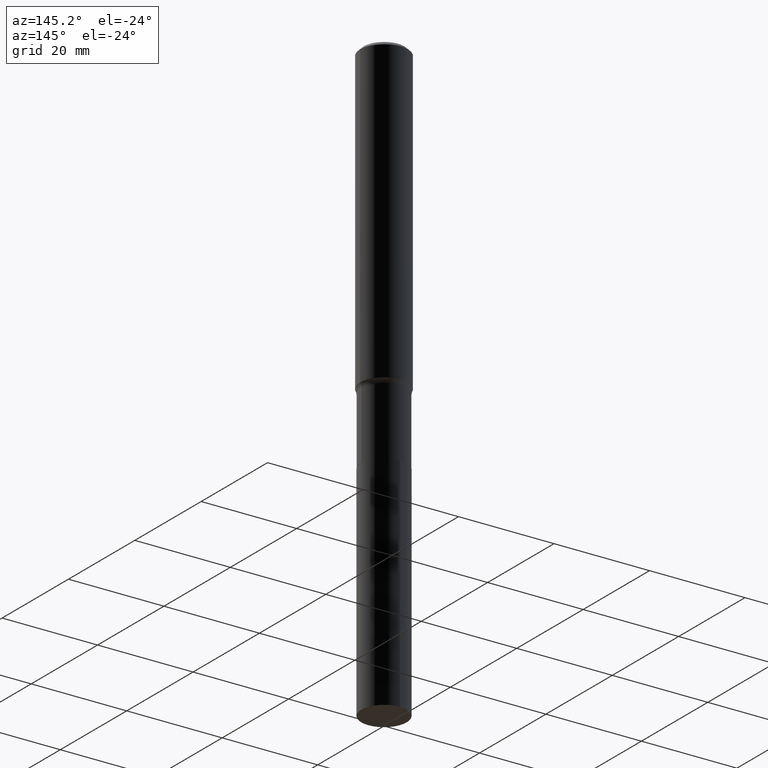
[diagram: clean part render]
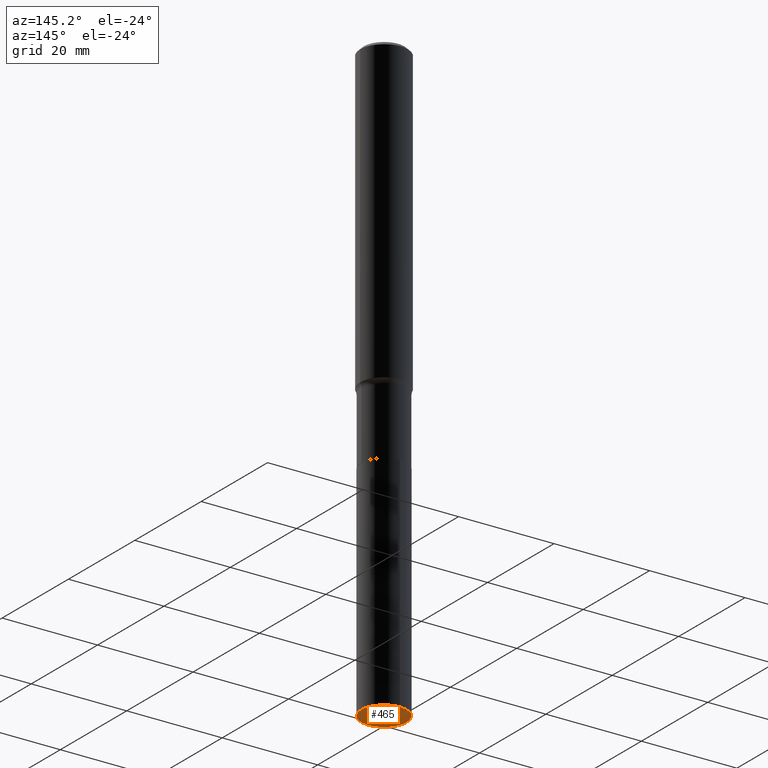
[diagram: same view with one face highlighted and labeled with its STEP entity id]
A machine part, auxiliary view. The second image highlights one B-rep face of the part: STEP entity #465.
In plain terms, the highlighted planar face has unit normal (-0, 0, 1).
Its self-contained STEP definition (entity closure, byte-faithful):
#5 = DIRECTION ( 'NONE',  ( -2.445466127994541695E-29, 3.491485174164510259E-15, 1.000000000000000000 ) ) ;
#6 = AXIS2_PLACEMENT_3D ( 'NONE', #420, #249, #244 ) ;
#24 = EDGE_CURVE ( 'NONE', #284, #422, #31, .T. ) ;
#31 = CIRCLE ( 'NONE', #6, 0.1869999999999999996 ) ;
#34 = DIRECTION ( 'NONE',  ( -2.445466127994541976E-29, 3.491485174164510259E-15, 1.000000000000000000 ) ) ;
#94 = ORIENTED_EDGE ( 'NONE', *, *, #446, .F. ) ;
#104 = CARTESIAN_POINT ( 'NONE',  ( 1.203488073211193522E-28, -1.718263413532219501E-14, -4.921300000000000452 ) ) ;
#107 = AXIS2_PLACEMENT_3D ( 'NONE', #104, #34, #179 ) ;
#154 = FACE_OUTER_BOUND ( 'NONE', #231, .T. ) ;
#160 = PLANE ( 'NONE',  #238 ) ;
#179 = DIRECTION ( 'NONE',  ( -6.982962677686266711E-15, -1.000000000000000000, 5.843525120137461189E-15 ) ) ;
#218 = CARTESIAN_POINT ( 'NONE',  ( -1.305814020727211503E-15, -0.1870000000000171803, -4.921299999999999564 ) ) ;
#228 = ORIENTED_EDGE ( 'NONE', *, *, #24, .F. ) ;
#231 = EDGE_LOOP ( 'NONE', ( #228, #94 ) ) ;
#238 = AXIS2_PLACEMENT_3D ( 'NONE', #415, #5, #277 ) ;
#244 = DIRECTION ( 'NONE',  ( -6.982962677686266711E-15, -1.000000000000000000, 5.843525120137461189E-15 ) ) ;
#249 = DIRECTION ( 'NONE',  ( -2.445466127994541976E-29, 3.491485174164510259E-15, 1.000000000000000000 ) ) ;
#255 = CIRCLE ( 'NONE', #107, 0.1869999999999999996 ) ;
#263 = CARTESIAN_POINT ( 'NONE',  ( 1.328714915871484966E-15, 0.1869999999999828466, -4.921300000000002228 ) ) ;
#277 = DIRECTION ( 'NONE',  ( -6.982962677686265922E-15, -1.000000000000000000, 3.491485174164510259E-15 ) ) ;
#284 = VERTEX_POINT ( 'NONE', #218 ) ;
#415 = CARTESIAN_POINT ( 'NONE',  ( -8.046536996898375856E-29, -4.594036728658125943E-14, -4.921300000000000452 ) ) ;
#420 = CARTESIAN_POINT ( 'NONE',  ( 1.203488073211193522E-28, -1.718263413532219501E-14, -4.921300000000000452 ) ) ;
#422 = VERTEX_POINT ( 'NONE', #263 ) ;
#446 = EDGE_CURVE ( 'NONE', #422, #284, #255, .T. ) ;
#465 = ADVANCED_FACE ( 'NONE', ( #154 ), #160, .F. ) ;